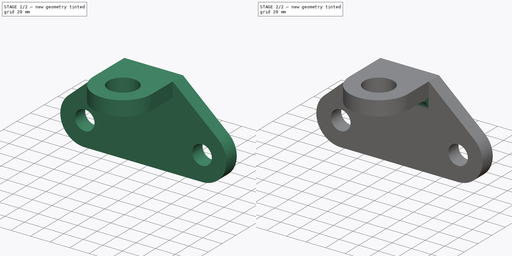
[diagram: build sequence overview — one tinted view per stage of 2, left to right]
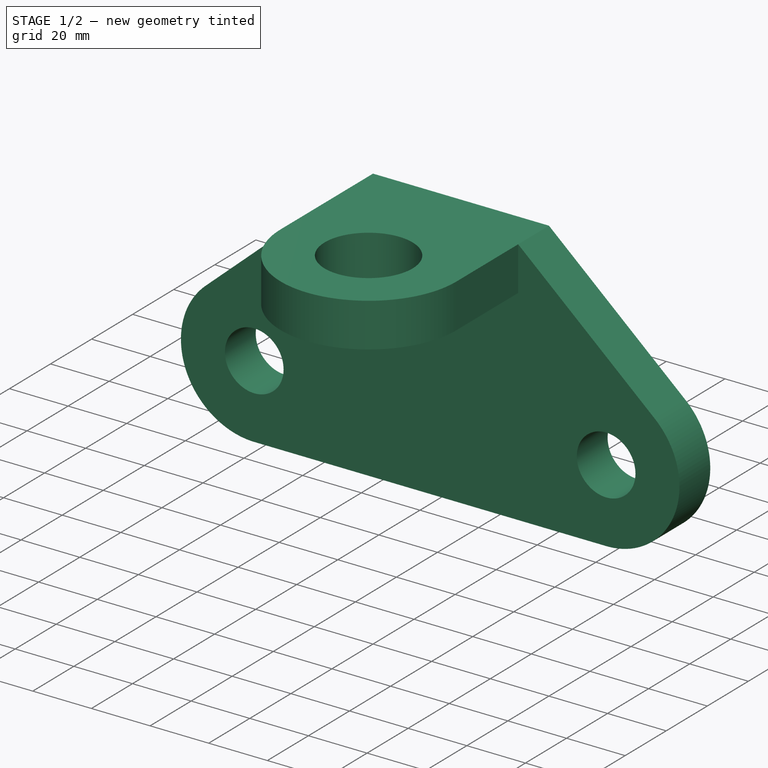
[diagram: stage 1 of 2 — iso view after this stage's code; geometry added in this stage tinted green]
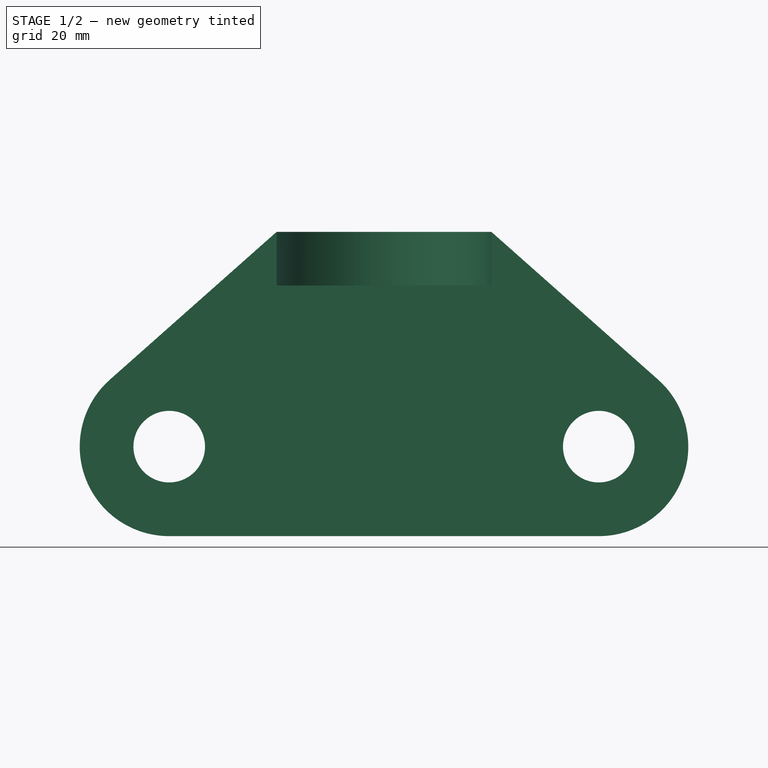
[diagram: stage 1 of 2 — front view after this stage's code; geometry added in this stage tinted green]
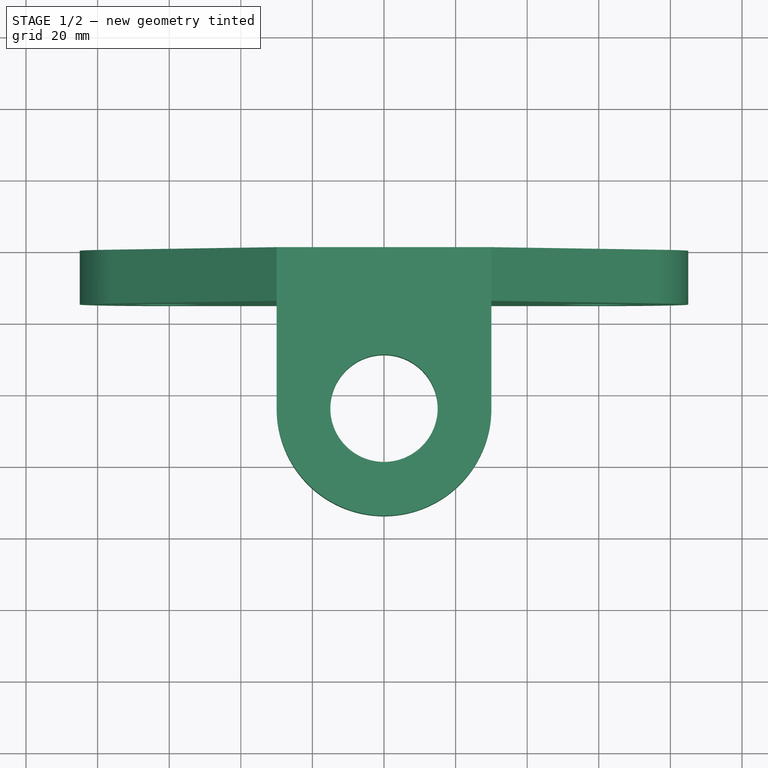
[diagram: stage 1 of 2 — top view after this stage's code; geometry added in this stage tinted green]
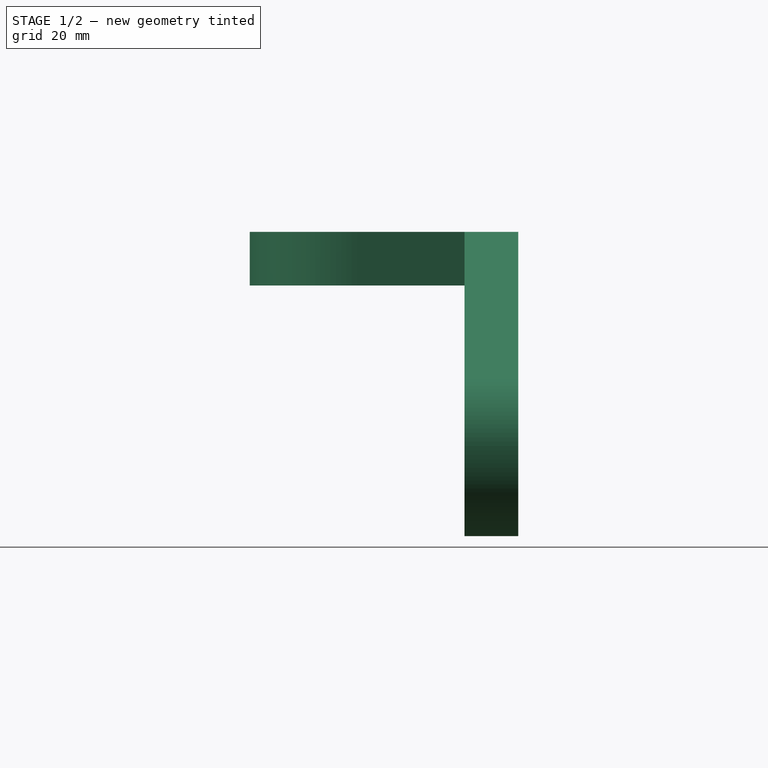
[diagram: stage 1 of 2 — right view after this stage's code; geometry added in this stage tinted green]
FCSTD DOCUMENT  (FreeCAD 0.16R)
Label: Ejer final
License: All rights reserved
LicenseURL: http://en.wikipedia.org/wiki/All_rights_reserved
objects: Sketcher::SketchObject×2, PartDesign::Pad×2, PartDesign::Fillet×1
note: 7 computed .brp shape members not serialized (recipe doc carries the construction recipe); baked Part::Feature solids carry a one-line shape summary decoded from their .brp

FEATURE [Sketcher::SketchObject] Sketch
  Placement = pos=(0,0,0) rot=(-1,0,0;4.71239rad)
  sketch-geometry (8):
    g0: Circle CenterX=-60 CenterY=0 CenterZ=0 NormalX=0 NormalY=0 NormalZ=1 Radius=10
    g1: ArcOfCircle CenterX=-60 CenterY=0 CenterZ=0 NormalX=0 NormalY=0 NormalZ=1 Radius=25 StartAngle=2.29605 EndAngle=4.71239
    g2: Circle CenterX=60 CenterY=0 CenterZ=0 NormalX=0 NormalY=0 NormalZ=1 Radius=10
    g3: ArcOfCircle CenterX=60 CenterY=0 CenterZ=0 NormalX=0 NormalY=0 NormalZ=1 Radius=25 StartAngle=4.71239 EndAngle=7.12873
    g4: LineSegment StartX=-60 StartY=-25 StartZ=0 EndX=60 EndY=-25 EndZ=0
    g5: LineSegment StartX=-76.5831 StartY=18.7083 StartZ=0 EndX=-30 EndY=60 EndZ=0
    g6: LineSegment StartX=30 StartY=60 StartZ=0 EndX=76.5832 EndY=18.7082 EndZ=0
    g7: LineSegment StartX=-30 StartY=60 StartZ=0 EndX=30 EndY=60 EndZ=0
  constraints (24):
    c: PointOnObject(g0,g-1)
    c: Coincident(g1,g0)
    c: PointOnObject(g2,g-1)
    c: Coincident(g3,g2)
    c: Radius(g0) = 10
    c: Radius(g2) = 10
    c: Radius(g1) = 25
    c: Radius(g3) = 25
    c: DistanceX(g0,g2) = 120
    c: DistanceX(g0,g-1) = 60
    c: Horizontal(g4)
    c: Horizontal(g7)
    c: Symmetric(g7,g7,g-2)
    c: DistanceX(g7,g7) = 60
    c: DistanceY(g2,g7) = 60
    c: Coincident(g6,g7)
    c: Coincident(g7,g5)
    c: Coincident(g3,g4)
    c: Coincident(g3,g6)
    c: Coincident(g1,g5)
    c: Coincident(g1,g4)
    c: Tangent(g3,g6)
    c: Tangent(g3,g4)
    c: Tangent(g1,g5)
FEATURE [PartDesign::Pad] Pad
  Length = 15
  Length2 = 100
  Placement = pos=(0,0,0) rot=(-1,0,0;4.71239rad)
  Sketch = -> Sketch
  Type = 0
FEATURE [Sketcher::SketchObject] Sketch001
  ExternalGeometry = -> [Pad]
  Placement = pos=(0,0,60) rot=(0,0,1;3.14159rad)
  Support = -> Pad [Face5]
  sketch-geometry (5):
    g0: Circle CenterX=0 CenterY=45 CenterZ=0 NormalX=0 NormalY=0 NormalZ=1 Radius=15
    g1: ArcOfCircle CenterX=0 CenterY=45 CenterZ=0 NormalX=0 NormalY=0 NormalZ=1 Radius=30 StartAngle=6.28318 EndAngle=9.42478
    g2: LineSegment StartX=-30 StartY=0 StartZ=0 EndX=-30 EndY=45 EndZ=0
    g3: LineSegment StartX=30 StartY=0 StartZ=0 EndX=30 EndY=45 EndZ=0
    g4: LineSegment StartX=-30 StartY=0 StartZ=0 EndX=30 EndY=0 EndZ=0
  constraints (13):
    c: Radius(g0) = 15
    c: DistanceY(g-1,g0) = 45
    c: Radius(g1) = 30
    c: Coincident(g2,g-3)
    c: Coincident(g3,g-3)
    c: Coincident(g1,g0)
    c: PointOnObject(g0,g-2)
    c: Coincident(g1,g3)
    c: Coincident(g1,g2)
    c: Tangent(g2,g1)
    c: Tangent(g3,g1)
    c: Coincident(g4,g2)
    c: Coincident(g4,g3)
FEATURE [PartDesign::Pad] Pad001
  Length = 15
  Length2 = 100
  Placement = pos=(0,0,0) rot=(-1,0,0;4.71239rad)
  Reversed = true
  Sketch = -> Sketch001
  Type = 0
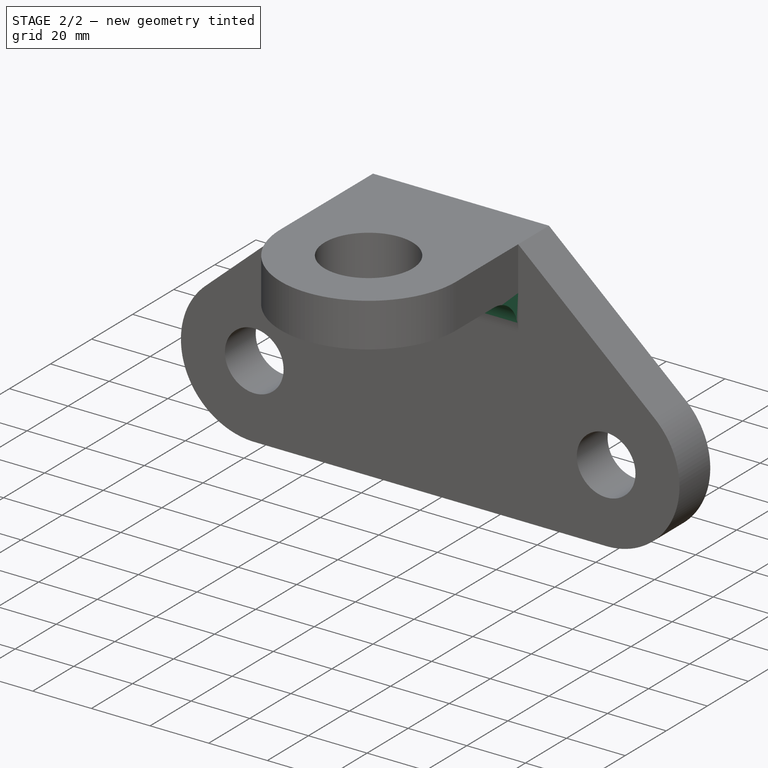
[diagram: stage 2 of 2 — iso view after this stage's code; geometry added in this stage tinted green]
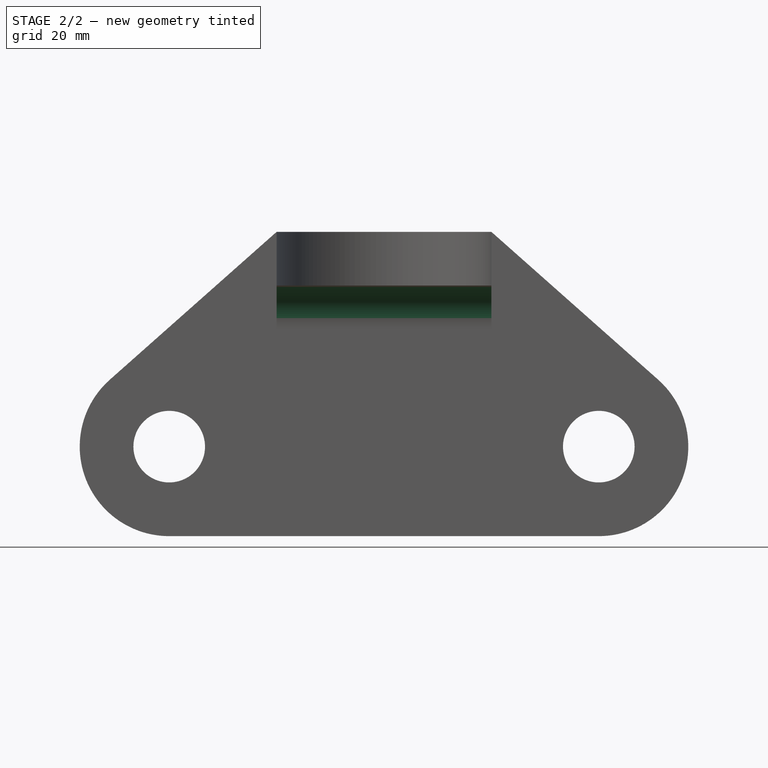
[diagram: stage 2 of 2 — front view after this stage's code; geometry added in this stage tinted green]
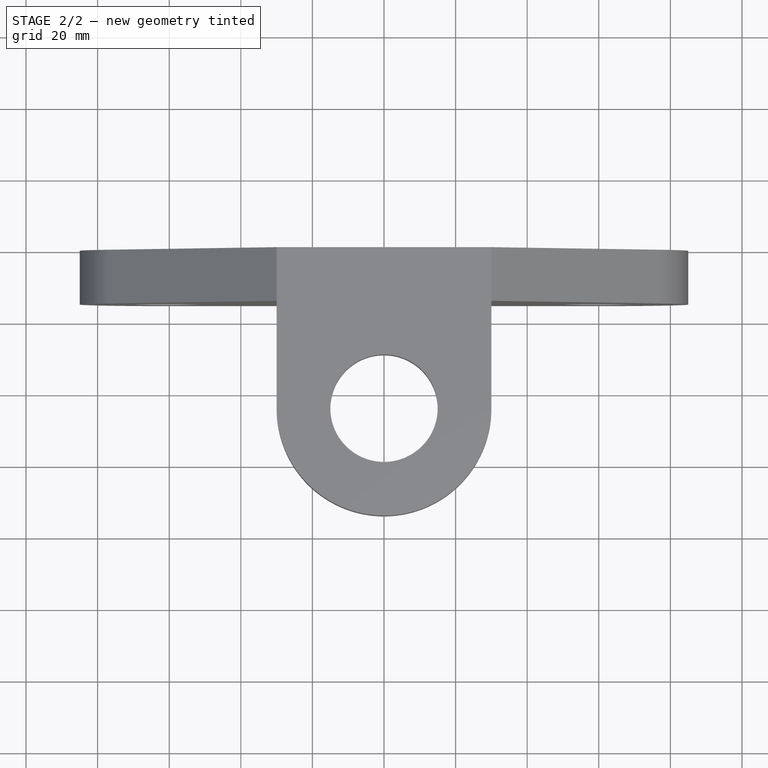
[diagram: stage 2 of 2 — top view after this stage's code; geometry added in this stage tinted green]
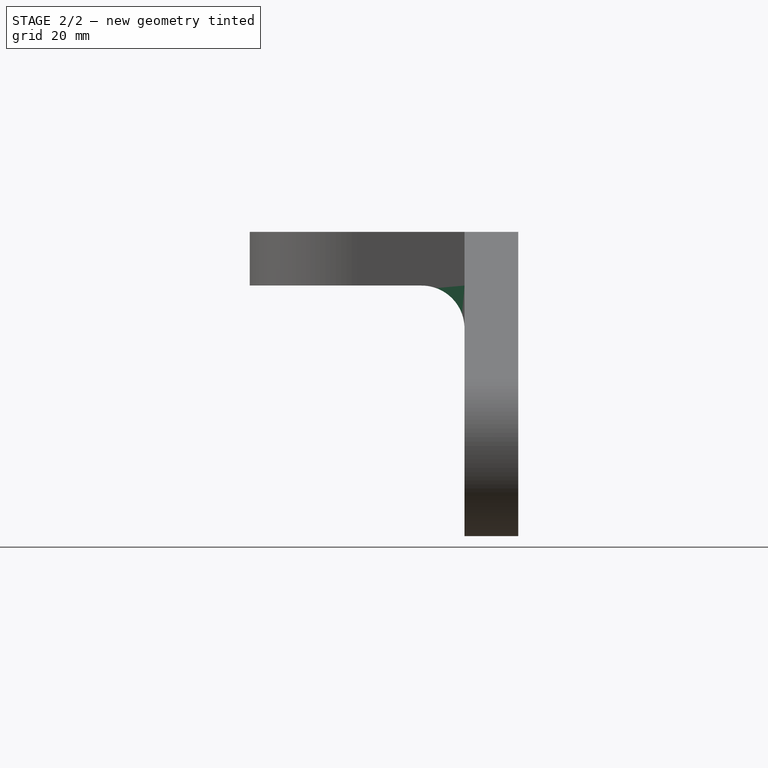
[diagram: stage 2 of 2 — right view after this stage's code; geometry added in this stage tinted green]
FEATURE [PartDesign::Fillet] Fillet
  Base = -> Pad001 [Edge14]
  Placement = pos=(0,0,0) rot=(-1,0,0;4.71239rad)
  Radius = 12
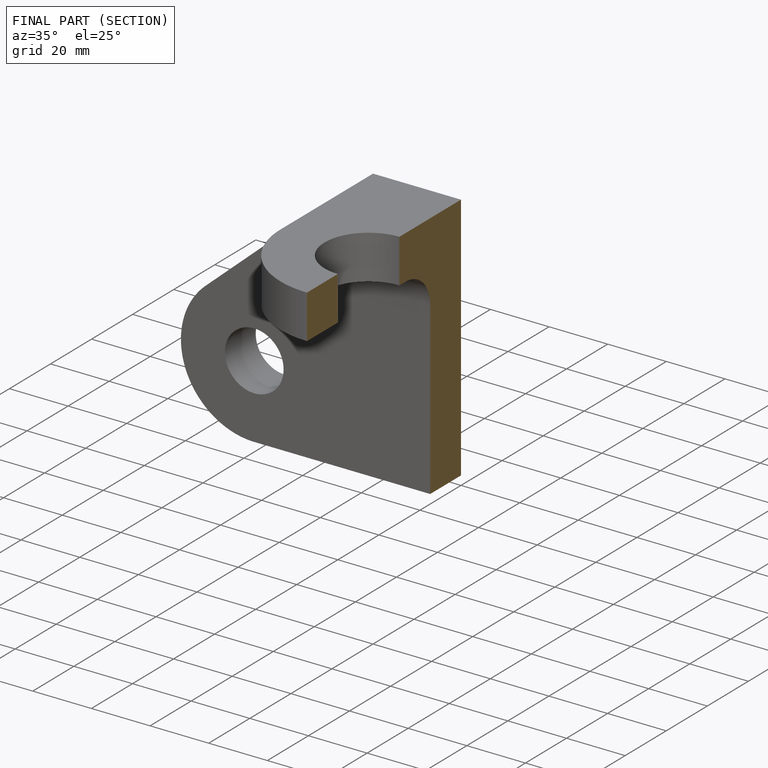
[diagram: finished part — half-section view (interior)]
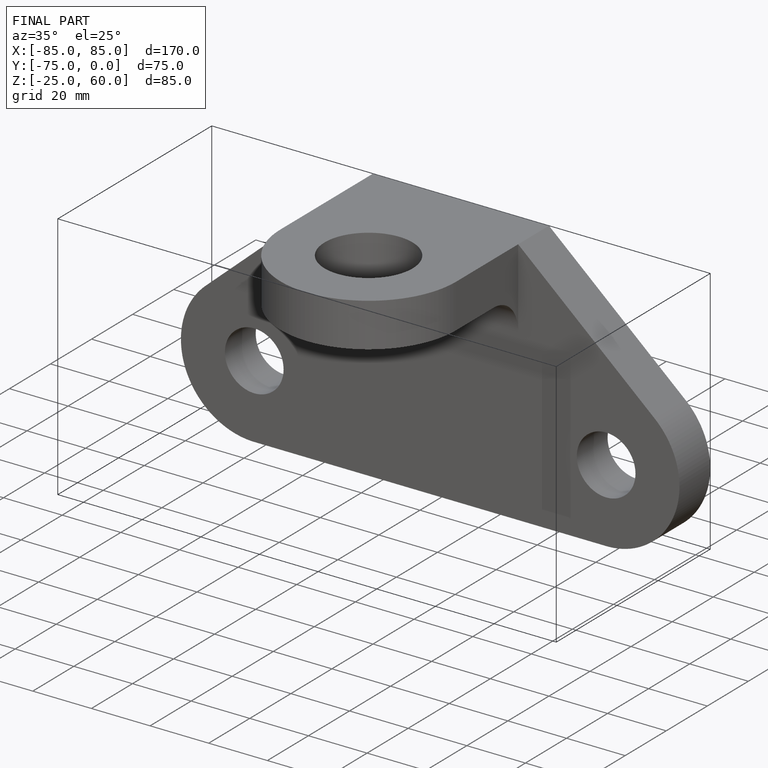
[diagram: finished part — iso view with bounding-box wireframe]
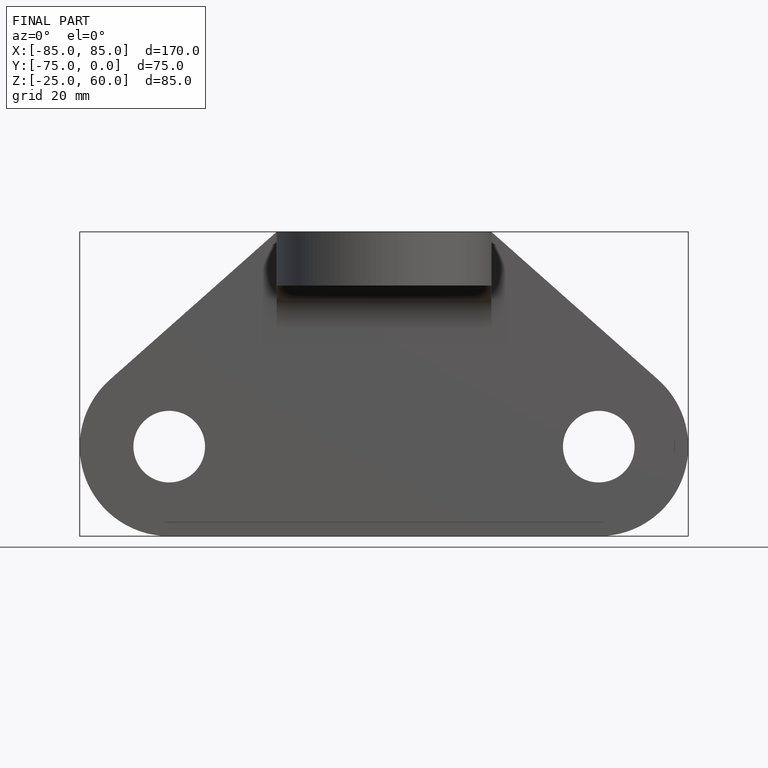
[diagram: finished part — front view with bounding-box wireframe]
